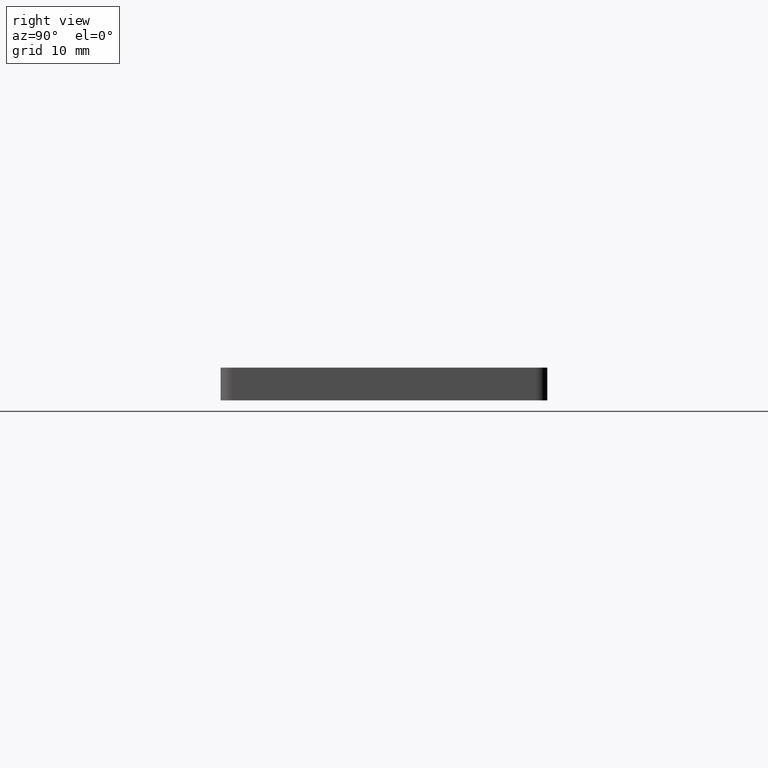
[diagram: clean part render]
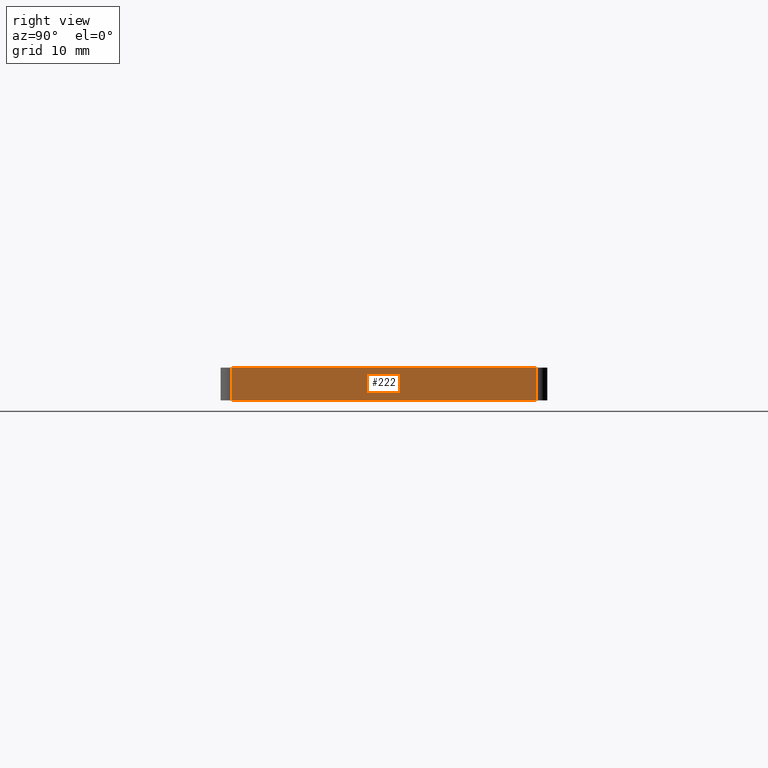
[diagram: same view with one face highlighted and labeled with its STEP entity id]
A machine part, right view. The second image highlights one B-rep face of the part: STEP entity #222.
In plain terms, the highlighted planar face has unit normal (-1, 0, 0).
Its self-contained STEP definition (entity closure, byte-faithful):
#164=CARTESIAN_POINT('',(0.0,-13.999999999999993,0.0));
#165=VERTEX_POINT('',#164);
#173=CARTESIAN_POINT('',(0.0,-13.999999999999993,3.0));
#174=VERTEX_POINT('',#173);
#175=CARTESIAN_POINT('',(0.0,-13.999999999999993,3.0));
#176=DIRECTION('',(0.0,0.0,-1.0));
#177=VECTOR('',#176,3.0);
#178=LINE('',#175,#177);
#179=EDGE_CURVE('',#174,#165,#178,.T.);
#192=CARTESIAN_POINT('',(0.0,-15.399999999999991,-0.150000000000000));
#193=DIRECTION('',(-1.0,0.0,0.0));
#194=DIRECTION('',(0.0,0.0,1.0));
#195=AXIS2_PLACEMENT_3D('',#192,#193,#194);
#196=PLANE('',#195);
#197=CARTESIAN_POINT('',(0.0,13.999999999999995,0.0));
#198=VERTEX_POINT('',#197);
#199=CARTESIAN_POINT('',(0.0,-13.999999999999993,0.0));
#200=DIRECTION('',(0.0,1.0,0.0));
#201=VECTOR('',#200,27.999999999999986);
#202=LINE('',#199,#201);
#203=EDGE_CURVE('',#165,#198,#202,.T.);
#204=ORIENTED_EDGE('',*,*,#203,.T.);
#205=CARTESIAN_POINT('',(0.0,13.999999999999995,3.0));
#206=VERTEX_POINT('',#205);
#207=CARTESIAN_POINT('',(0.0,13.999999999999995,3.0));
#208=DIRECTION('',(0.0,0.0,-1.0));
#209=VECTOR('',#208,3.0);
#210=LINE('',#207,#209);
#211=EDGE_CURVE('',#206,#198,#210,.T.);
#212=ORIENTED_EDGE('',*,*,#211,.F.);
#213=CARTESIAN_POINT('',(0.0,-13.999999999999993,3.0));
#214=DIRECTION('',(0.0,1.0,0.0));
#215=VECTOR('',#214,27.999999999999986);
#216=LINE('',#213,#215);
#217=EDGE_CURVE('',#174,#206,#216,.T.);
#218=ORIENTED_EDGE('',*,*,#217,.F.);
#219=ORIENTED_EDGE('',*,*,#179,.T.);
#220=EDGE_LOOP('',(#204,#212,#218,#219));
#221=FACE_OUTER_BOUND('',#220,.T.);
#222=ADVANCED_FACE('',(#221),#196,.F.);